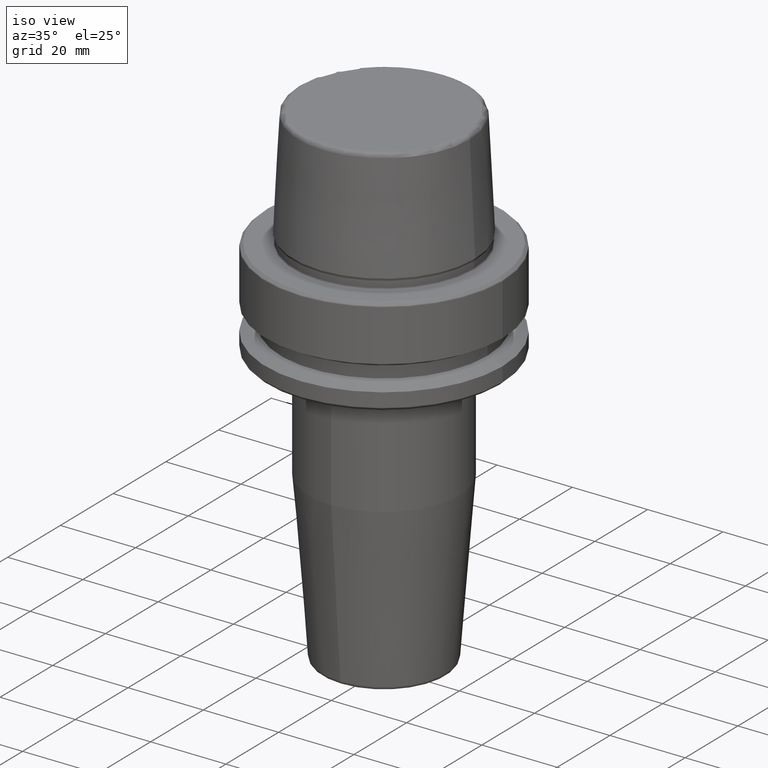
[diagram: clean part render]
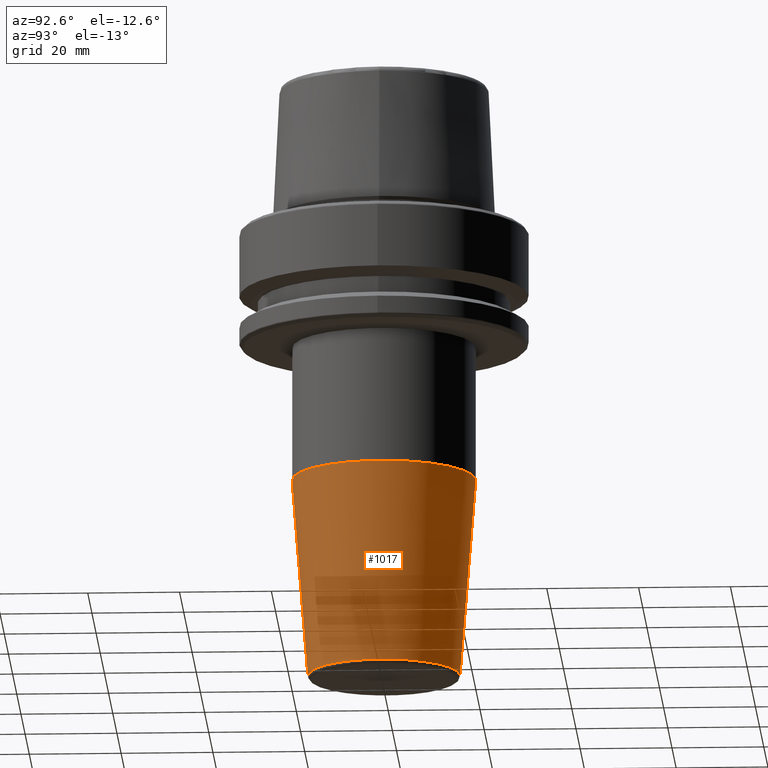
[diagram: tour spotlight — one face highlighted and labeled with its STEP entity id]
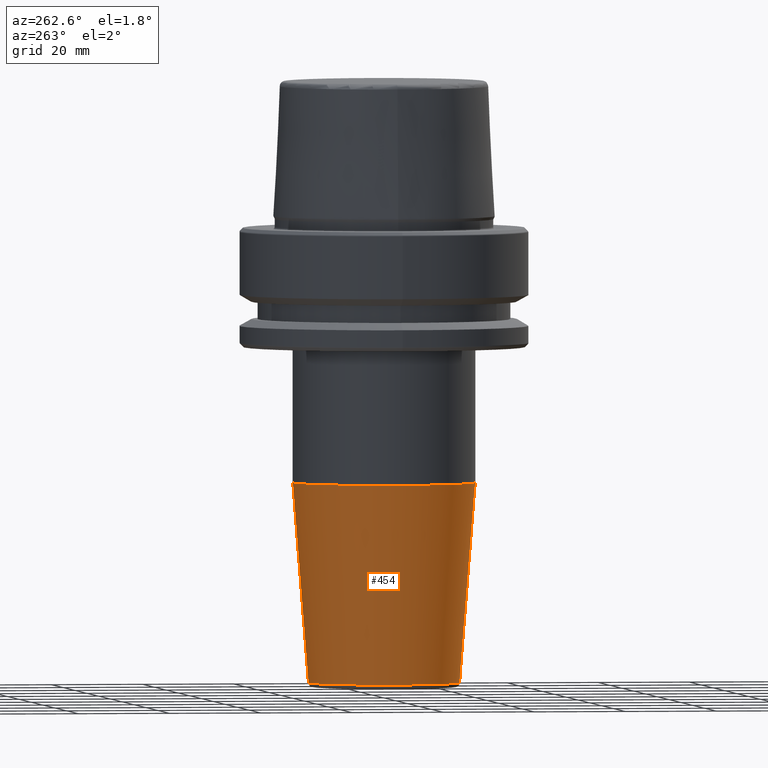
[diagram: tour spotlight — one face highlighted and labeled with its STEP entity id]
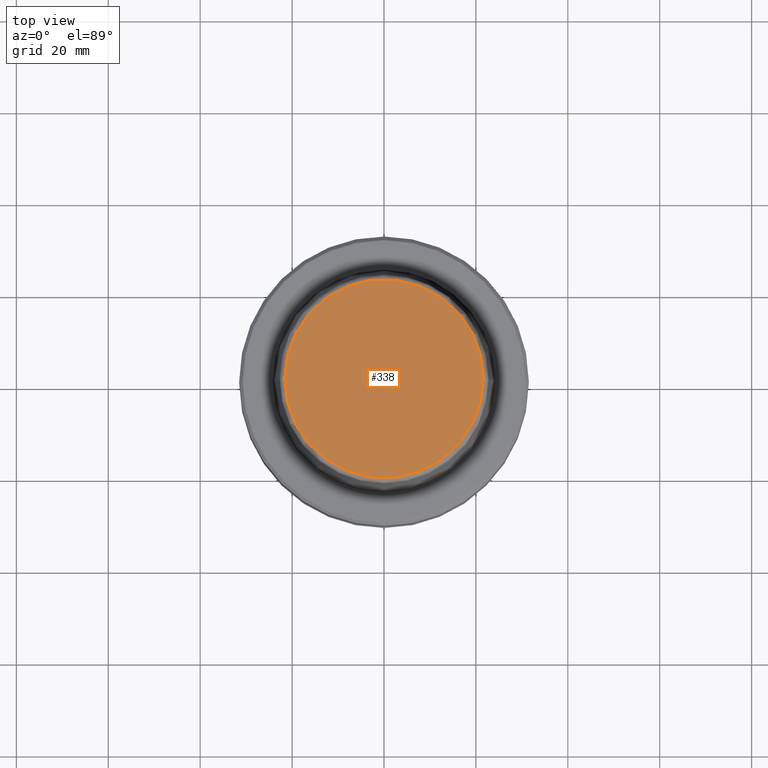
[diagram: tour spotlight — one face highlighted and labeled with its STEP entity id]
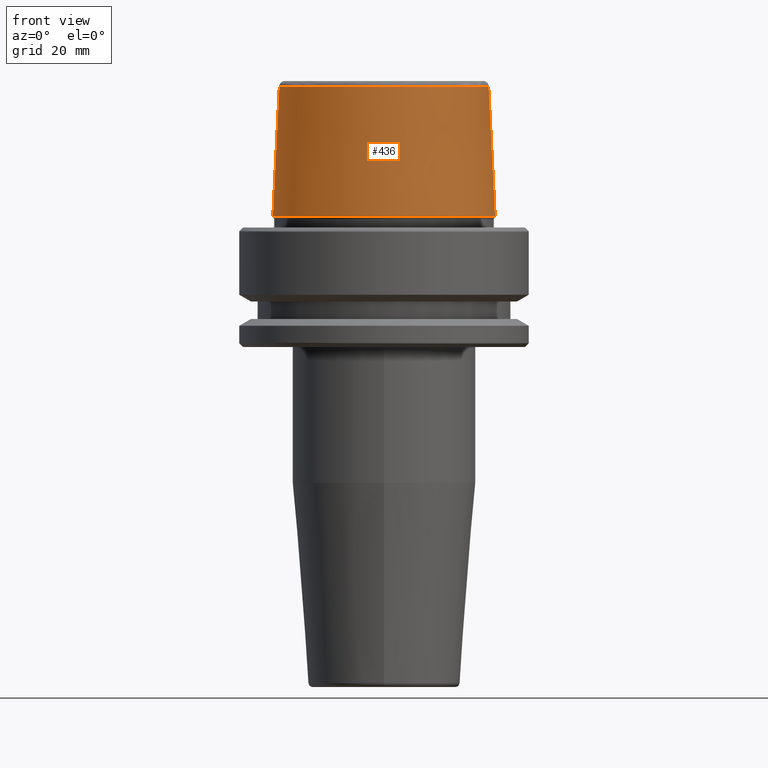
[diagram: tour spotlight — one face highlighted and labeled with its STEP entity id]
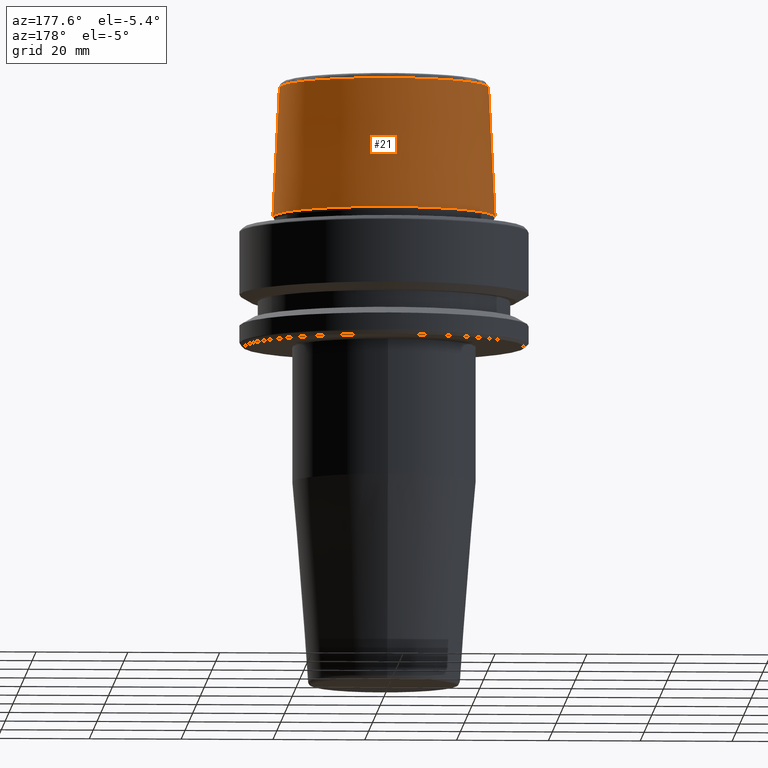
[diagram: tour spotlight — one face highlighted and labeled with its STEP entity id]
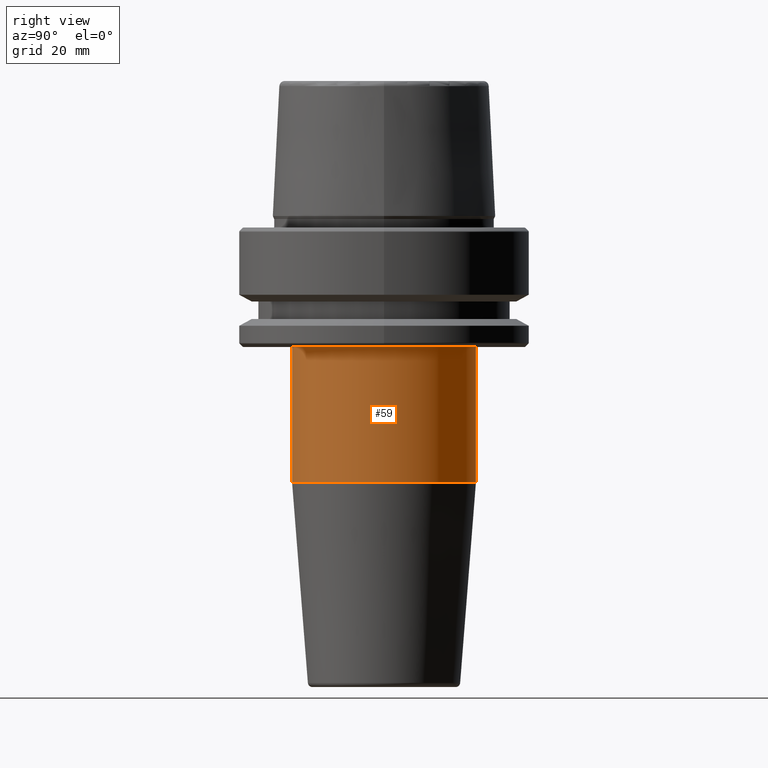
[diagram: tour spotlight — one face highlighted and labeled with its STEP entity id]
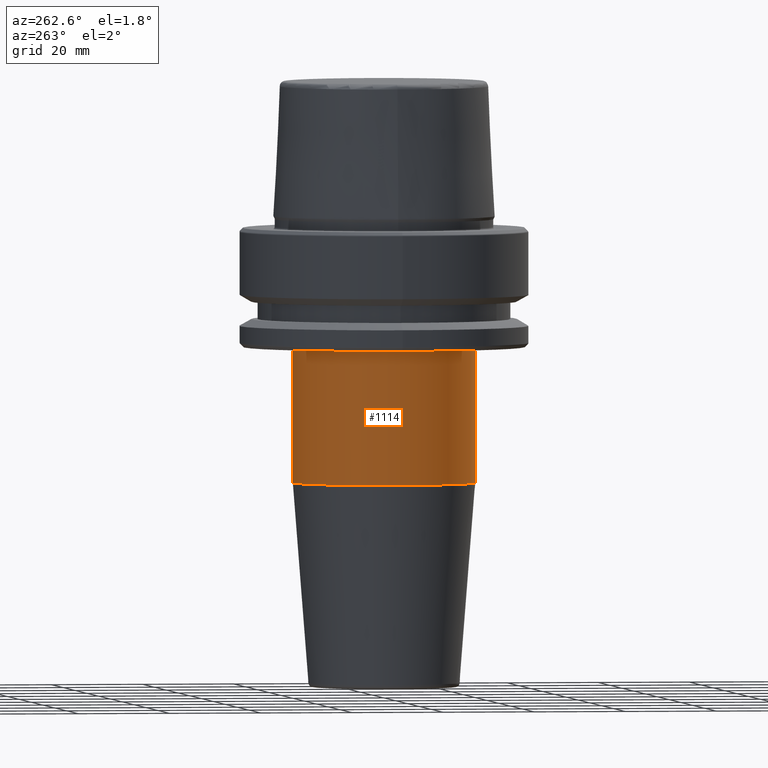
[diagram: tour spotlight — one face highlighted and labeled with its STEP entity id]
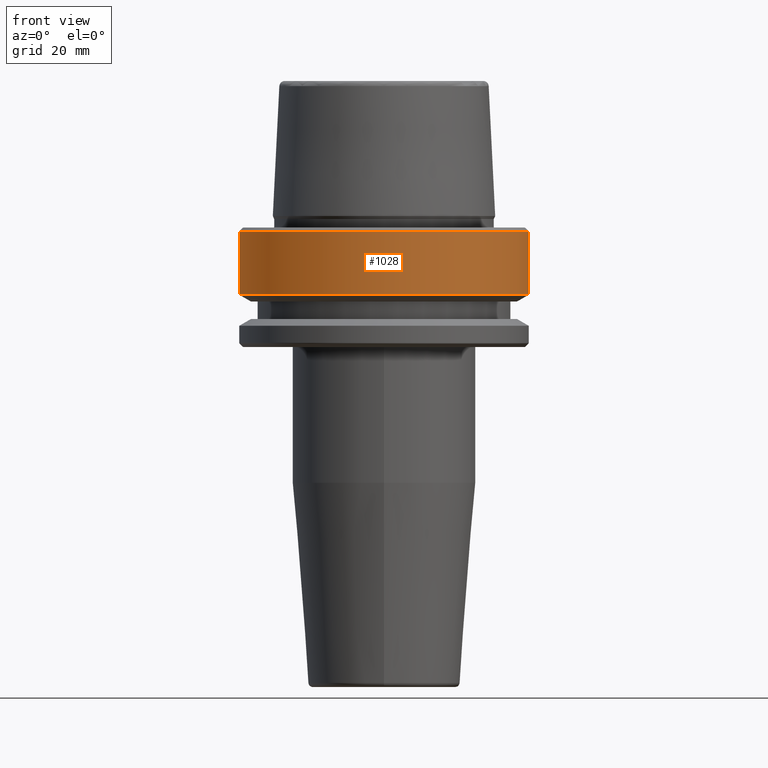
[diagram: tour spotlight — one face highlighted and labeled with its STEP entity id]
A machine part: a face-by-face anatomy tour. The part has 46 B-rep faces; the first image is the clean iso view, then the 8 largest visible faces are spotlighted one at a time (largest first), each with its STEP entity span.

Face 1 — auxiliary view, entity #1017. In plain terms, the highlighted conical surface has half-angle 4.5 deg.
Definition (entity closure, byte-faithful):
#30 = CARTESIAN_POINT ( 'NONE',  ( 0.0000000000000000000, -2.932031171251106800E-015, -55.52828342338450100 ) ) ;
#78 = EDGE_CURVE ( 'NONE', #832, #530, #959, .T. ) ;
#110 = VECTOR ( 'NONE', #869, 999.9999999999998900 ) ;
#121 = DIRECTION ( 'NONE',  ( 0.0000000000000000000, 1.000000000000000000, 0.0000000000000000000 ) ) ;
#129 = DIRECTION ( 'NONE',  ( 0.0000000000000000000, 9.929568641735291500E-017, 1.000000000000000000 ) ) ;
#148 = EDGE_LOOP ( 'NONE', ( #1251, #773, #1233, #844 ) ) ;
#154 = CARTESIAN_POINT ( 'NONE',  ( 2.029549195093064800E-015, -16.57252684207492900, -99.07845909572783700 ) ) ;
#156 = CIRCLE ( 'NONE', #1220, 16.57252684207492200 ) ;
#168 = EDGE_CURVE ( 'NONE', #530, #1243, #577, .T. ) ;
#204 = CARTESIAN_POINT ( 'NONE',  ( 2.449293598294705300E-015, 19.99999999999998600, -55.52828342338450100 ) ) ;
#208 = CARTESIAN_POINT ( 'NONE',  ( 0.0000000000000000000, -2.932031171251106800E-015, -55.52828342338450100 ) ) ;
#266 = EDGE_CURVE ( 'NONE', #832, #328, #156, .T. ) ;
#307 = CARTESIAN_POINT ( 'NONE',  ( 0.0000000000000000000, 16.57252684207491500, -99.07845909572783700 ) ) ;
#328 = VERTEX_POINT ( 'NONE', #154 ) ;
#366 = LINE ( 'NONE', #575, #110 ) ;
#392 = FACE_OUTER_BOUND ( 'NONE', #148, .T. ) ;
#530 = VERTEX_POINT ( 'NONE', #569 ) ;
#538 = DIRECTION ( 'NONE',  ( -0.0000000000000000000, -9.929568641735291500E-017, -1.000000000000000000 ) ) ;
#552 = EDGE_CURVE ( 'NONE', #328, #1243, #366, .T. ) ;
#563 = AXIS2_PLACEMENT_3D ( 'NONE', #30, #701, #121 ) ;
#569 = CARTESIAN_POINT ( 'NONE',  ( 2.449293598294705300E-015, 19.99999999999998600, -55.52828342338450100 ) ) ;
#575 = CARTESIAN_POINT ( 'NONE',  ( 0.0000000000000000000, -19.99999999999999300, -55.52828342338450100 ) ) ;
#577 = CIRCLE ( 'NONE', #563, 19.99999999999998900 ) ;
#630 = CONICAL_SURFACE ( 'NONE', #668, 19.99999999999998900, 0.07853981633973740300 ) ;
#668 = AXIS2_PLACEMENT_3D ( 'NONE', #208, #129, #707 ) ;
#701 = DIRECTION ( 'NONE',  ( -0.0000000000000000000, -9.929568641735291500E-017, -1.000000000000000000 ) ) ;
#707 = DIRECTION ( 'NONE',  ( 0.0000000000000000000, -1.000000000000000000, 0.0000000000000000000 ) ) ;
#773 = ORIENTED_EDGE ( 'NONE', *, *, #78, .T. ) ;
#797 = DIRECTION ( 'NONE',  ( 9.608468044709199800E-018, 0.07845909572783763000, 0.9969173337331286300 ) ) ;
#832 = VERTEX_POINT ( 'NONE', #307 ) ;
#844 = ORIENTED_EDGE ( 'NONE', *, *, #552, .F. ) ;
#869 = DIRECTION ( 'NONE',  ( 0.0000000000000000000, -0.07845909572783743600, 0.9969173337331286300 ) ) ;
#942 = CARTESIAN_POINT ( 'NONE',  ( 0.0000000000000000000, -19.99999999999999300, -55.52828342338450100 ) ) ;
#959 = LINE ( 'NONE', #204, #1242 ) ;
#1017 = ADVANCED_FACE ( 'NONE', ( #392 ), #630, .T. ) ;
#1132 = CARTESIAN_POINT ( 'NONE',  ( 0.0000000000000000000, -7.256375758232741500E-015, -99.07845909572783700 ) ) ;
#1220 = AXIS2_PLACEMENT_3D ( 'NONE', #1132, #538, #1225 ) ;
#1225 = DIRECTION ( 'NONE',  ( 0.0000000000000000000, 1.000000000000000000, 0.0000000000000000000 ) ) ;
#1233 = ORIENTED_EDGE ( 'NONE', *, *, #168, .T. ) ;
#1242 = VECTOR ( 'NONE', #797, 999.9999999999998900 ) ;
#1243 = VERTEX_POINT ( 'NONE', #942 ) ;
#1251 = ORIENTED_EDGE ( 'NONE', *, *, #266, .F. ) ;

Face 2 — auxiliary view, entity #454. In plain terms, the highlighted conical surface has half-angle 4.5 deg.
Definition (entity closure, byte-faithful):
#78 = EDGE_CURVE ( 'NONE', #832, #530, #959, .T. ) ;
#79 = CARTESIAN_POINT ( 'NONE',  ( 0.0000000000000000000, -2.932031171251106800E-015, -55.52828342338450100 ) ) ;
#110 = VECTOR ( 'NONE', #869, 999.9999999999998900 ) ;
#130 = EDGE_CURVE ( 'NONE', #1243, #530, #145, .T. ) ;
#145 = CIRCLE ( 'NONE', #887, 19.99999999999998900 ) ;
#154 = CARTESIAN_POINT ( 'NONE',  ( 2.029549195093064800E-015, -16.57252684207492900, -99.07845909572783700 ) ) ;
#204 = CARTESIAN_POINT ( 'NONE',  ( 2.449293598294705300E-015, 19.99999999999998600, -55.52828342338450100 ) ) ;
#307 = CARTESIAN_POINT ( 'NONE',  ( 0.0000000000000000000, 16.57252684207491500, -99.07845909572783700 ) ) ;
#319 = CARTESIAN_POINT ( 'NONE',  ( 0.0000000000000000000, -7.256375758232741500E-015, -99.07845909572783700 ) ) ;
#328 = VERTEX_POINT ( 'NONE', #154 ) ;
#366 = LINE ( 'NONE', #575, #110 ) ;
#388 = ORIENTED_EDGE ( 'NONE', *, *, #130, .T. ) ;
#413 = DIRECTION ( 'NONE',  ( 0.0000000000000000000, 1.000000000000000000, 0.0000000000000000000 ) ) ;
#421 = DIRECTION ( 'NONE',  ( -0.0000000000000000000, -9.929568641735291500E-017, -1.000000000000000000 ) ) ;
#450 = DIRECTION ( 'NONE',  ( 0.0000000000000000000, 9.929568641735291500E-017, 1.000000000000000000 ) ) ;
#454 = ADVANCED_FACE ( 'NONE', ( #1236 ), #680, .T. ) ;
#530 = VERTEX_POINT ( 'NONE', #569 ) ;
#552 = EDGE_CURVE ( 'NONE', #328, #1243, #366, .T. ) ;
#569 = CARTESIAN_POINT ( 'NONE',  ( 2.449293598294705300E-015, 19.99999999999998600, -55.52828342338450100 ) ) ;
#575 = CARTESIAN_POINT ( 'NONE',  ( 0.0000000000000000000, -19.99999999999999300, -55.52828342338450100 ) ) ;
#680 = CONICAL_SURFACE ( 'NONE', #868, 19.99999999999998900, 0.07853981633973740300 ) ;
#761 = ORIENTED_EDGE ( 'NONE', *, *, #1082, .F. ) ;
#797 = DIRECTION ( 'NONE',  ( 9.608468044709199800E-018, 0.07845909572783763000, 0.9969173337331286300 ) ) ;
#826 = ORIENTED_EDGE ( 'NONE', *, *, #78, .F. ) ;
#832 = VERTEX_POINT ( 'NONE', #307 ) ;
#868 = AXIS2_PLACEMENT_3D ( 'NONE', #79, #450, #1234 ) ;
#869 = DIRECTION ( 'NONE',  ( 0.0000000000000000000, -0.07845909572783743600, 0.9969173337331286300 ) ) ;
#887 = AXIS2_PLACEMENT_3D ( 'NONE', #1019, #421, #1119 ) ;
#942 = CARTESIAN_POINT ( 'NONE',  ( 0.0000000000000000000, -19.99999999999999300, -55.52828342338450100 ) ) ;
#959 = LINE ( 'NONE', #204, #1242 ) ;
#1008 = DIRECTION ( 'NONE',  ( -0.0000000000000000000, -9.929568641735291500E-017, -1.000000000000000000 ) ) ;
#1019 = CARTESIAN_POINT ( 'NONE',  ( 0.0000000000000000000, -2.932031171251106800E-015, -55.52828342338450100 ) ) ;
#1052 = EDGE_LOOP ( 'NONE', ( #826, #761, #1246, #388 ) ) ;
#1075 = AXIS2_PLACEMENT_3D ( 'NONE', #319, #1008, #413 ) ;
#1082 = EDGE_CURVE ( 'NONE', #328, #832, #1209, .T. ) ;
#1119 = DIRECTION ( 'NONE',  ( 0.0000000000000000000, 1.000000000000000000, 0.0000000000000000000 ) ) ;
#1209 = CIRCLE ( 'NONE', #1075, 16.57252684207492200 ) ;
#1234 = DIRECTION ( 'NONE',  ( 0.0000000000000000000, -1.000000000000000000, 0.0000000000000000000 ) ) ;
#1236 = FACE_OUTER_BOUND ( 'NONE', #1052, .T. ) ;
#1242 = VECTOR ( 'NONE', #797, 999.9999999999998900 ) ;
#1243 = VERTEX_POINT ( 'NONE', #942 ) ;
#1246 = ORIENTED_EDGE ( 'NONE', *, *, #552, .T. ) ;

Face 3 — top view, entity #338. In plain terms, the highlighted planar face has unit normal (0, 0, -1).
Definition (entity closure, byte-faithful):
#192 = CIRCLE ( 'NONE', #545, 21.58108272732117100 ) ;
#258 = CARTESIAN_POINT ( 'NONE',  ( 0.0000000000000000000, 0.0000000000000000000, 31.89999999999999900 ) ) ;
#314 = DIRECTION ( 'NONE',  ( -0.0000000000000000000, -0.0000000000000000000, 1.000000000000000000 ) ) ;
#336 = AXIS2_PLACEMENT_3D ( 'NONE', #739, #504, #1195 ) ;
#338 = ADVANCED_FACE ( 'NONE', ( #586 ), #938, .F. ) ;
#365 = DIRECTION ( 'NONE',  ( 1.000000000000000000, 0.0000000000000000000, 0.0000000000000000000 ) ) ;
#441 = VERTEX_POINT ( 'NONE', #646 ) ;
#482 = EDGE_CURVE ( 'NONE', #518, #441, #714, .T. ) ;
#504 = DIRECTION ( 'NONE',  ( 0.0000000000000000000, 0.0000000000000000000, -1.000000000000000000 ) ) ;
#518 = VERTEX_POINT ( 'NONE', #958 ) ;
#545 = AXIS2_PLACEMENT_3D ( 'NONE', #905, #314, #1002 ) ;
#586 = FACE_OUTER_BOUND ( 'NONE', #620, .T. ) ;
#620 = EDGE_LOOP ( 'NONE', ( #854, #968 ) ) ;
#646 = CARTESIAN_POINT ( 'NONE',  ( -21.58108272732117100, 2.716307157494421400E-015, 31.89999999999999900 ) ) ;
#714 = CIRCLE ( 'NONE', #992, 21.58108272732117100 ) ;
#739 = CARTESIAN_POINT ( 'NONE',  ( 0.0000000000000000000, 0.0000000000000000000, 31.89999999999999900 ) ) ;
#854 = ORIENTED_EDGE ( 'NONE', *, *, #482, .T. ) ;
#905 = CARTESIAN_POINT ( 'NONE',  ( 0.0000000000000000000, 0.0000000000000000000, 31.89999999999999900 ) ) ;
#938 = PLANE ( 'NONE',  #336 ) ;
#955 = DIRECTION ( 'NONE',  ( -0.0000000000000000000, -0.0000000000000000000, 1.000000000000000000 ) ) ;
#958 = CARTESIAN_POINT ( 'NONE',  ( 21.58108272732117100, 0.0000000000000000000, 31.89999999999999900 ) ) ;
#968 = ORIENTED_EDGE ( 'NONE', *, *, #994, .T. ) ;
#992 = AXIS2_PLACEMENT_3D ( 'NONE', #258, #955, #365 ) ;
#994 = EDGE_CURVE ( 'NONE', #441, #518, #192, .T. ) ;
#1002 = DIRECTION ( 'NONE',  ( 1.000000000000000000, 0.0000000000000000000, 0.0000000000000000000 ) ) ;
#1195 = DIRECTION ( 'NONE',  ( -1.000000000000000000, 0.0000000000000000000, -0.0000000000000000000 ) ) ;

Face 4 — front view, entity #436. In plain terms, the highlighted conical surface has half-angle 2.868 deg.
Definition (entity closure, byte-faithful):
#26 = CARTESIAN_POINT ( 'NONE',  ( 22.77957961851797100, 2.876386432489616700E-015, 30.76004333261571900 ) ) ;
#47 = EDGE_LOOP ( 'NONE', ( #516, #169, #1103, #1004 ) ) ;
#94 = DIRECTION ( 'NONE',  ( -0.0000000000000000000, -0.0000000000000000000, 1.000000000000000000 ) ) ;
#101 = CARTESIAN_POINT ( 'NONE',  ( 24.19537568275369200, 0.0000000000000000000, 2.500000000000002200 ) ) ;
#169 = ORIENTED_EDGE ( 'NONE', *, *, #735, .F. ) ;
#215 = EDGE_CURVE ( 'NONE', #353, #722, #1162, .T. ) ;
#280 = CARTESIAN_POINT ( 'NONE',  ( 0.0000000000000000000, 0.0000000000000000000, 30.76004333261571900 ) ) ;
#320 = CARTESIAN_POINT ( 'NONE',  ( -24.19537568275369200, 2.963078938405201500E-015, 2.500000000000002200 ) ) ;
#353 = VERTEX_POINT ( 'NONE', #26 ) ;
#355 = EDGE_CURVE ( 'NONE', #491, #1024, #1108, .T. ) ;
#356 = CARTESIAN_POINT ( 'NONE',  ( 0.0000000000000000000, 0.0000000000000000000, 2.500000000000002200 ) ) ;
#383 = DIRECTION ( 'NONE',  ( 1.000000000000000000, 0.0000000000000000000, 0.0000000000000000000 ) ) ;
#436 = ADVANCED_FACE ( 'NONE', ( #517 ), #1212, .T. ) ;
#491 = VERTEX_POINT ( 'NONE', #855 ) ;
#508 = DIRECTION ( 'NONE',  ( -0.05003611051310804400, 0.0000000000000000000, -0.9987474093306675200 ) ) ;
#516 = ORIENTED_EDGE ( 'NONE', *, *, #215, .F. ) ;
#517 = FACE_OUTER_BOUND ( 'NONE', #47, .T. ) ;
#540 = EDGE_CURVE ( 'NONE', #1024, #722, #1153, .T. ) ;
#554 = VECTOR ( 'NONE', #508, 1000.000000000000200 ) ;
#599 = AXIS2_PLACEMENT_3D ( 'NONE', #356, #1048, #1149 ) ;
#665 = CARTESIAN_POINT ( 'NONE',  ( 0.0000000000000000000, 0.0000000000000000000, 2.500000000000002200 ) ) ;
#694 = CARTESIAN_POINT ( 'NONE',  ( -24.19537568275369200, 0.0000000000000000000, 2.500000000000002200 ) ) ;
#705 = DIRECTION ( 'NONE',  ( 0.05003611051310804400, 6.127656258166099700E-018, -0.9987474093306675200 ) ) ;
#722 = VERTEX_POINT ( 'NONE', #101 ) ;
#735 = EDGE_CURVE ( 'NONE', #491, #353, #1215, .T. ) ;
#766 = DIRECTION ( 'NONE',  ( 1.000000000000000000, 0.0000000000000000000, 0.0000000000000000000 ) ) ;
#836 = AXIS2_PLACEMENT_3D ( 'NONE', #280, #974, #383 ) ;
#855 = CARTESIAN_POINT ( 'NONE',  ( -22.77957961851797100, 0.0000000000000000000, 30.76004333261571900 ) ) ;
#974 = DIRECTION ( 'NONE',  ( -0.0000000000000000000, -0.0000000000000000000, 1.000000000000000000 ) ) ;
#1004 = ORIENTED_EDGE ( 'NONE', *, *, #540, .T. ) ;
#1024 = VERTEX_POINT ( 'NONE', #320 ) ;
#1048 = DIRECTION ( 'NONE',  ( 0.0000000000000000000, 0.0000000000000000000, -1.000000000000000000 ) ) ;
#1072 = VECTOR ( 'NONE', #705, 1000.000000000000200 ) ;
#1103 = ORIENTED_EDGE ( 'NONE', *, *, #355, .T. ) ;
#1105 = CARTESIAN_POINT ( 'NONE',  ( 24.19537568275369200, 2.963078938405201500E-015, 2.500000000000002200 ) ) ;
#1108 = LINE ( 'NONE', #694, #554 ) ;
#1149 = DIRECTION ( 'NONE',  ( -1.000000000000000000, 0.0000000000000000000, 0.0000000000000000000 ) ) ;
#1153 = CIRCLE ( 'NONE', #1255, 24.19537568275369200 ) ;
#1162 = LINE ( 'NONE', #1105, #1072 ) ;
#1212 = CONICAL_SURFACE ( 'NONE', #599, 24.19537568275369200, 0.05005701257455997400 ) ;
#1215 = CIRCLE ( 'NONE', #836, 22.77957961851797100 ) ;
#1255 = AXIS2_PLACEMENT_3D ( 'NONE', #665, #94, #766 ) ;

Face 5 — auxiliary view, entity #21. In plain terms, the highlighted conical surface has half-angle 2.868 deg.
Definition (entity closure, byte-faithful):
#21 = ADVANCED_FACE ( 'NONE', ( #494 ), #193, .T. ) ;
#26 = CARTESIAN_POINT ( 'NONE',  ( 22.77957961851797100, 2.876386432489616700E-015, 30.76004333261571900 ) ) ;
#99 = DIRECTION ( 'NONE',  ( 1.000000000000000000, 0.0000000000000000000, 0.0000000000000000000 ) ) ;
#101 = CARTESIAN_POINT ( 'NONE',  ( 24.19537568275369200, 0.0000000000000000000, 2.500000000000002200 ) ) ;
#122 = CARTESIAN_POINT ( 'NONE',  ( 0.0000000000000000000, 0.0000000000000000000, 30.76004333261571900 ) ) ;
#188 = CIRCLE ( 'NONE', #1244, 24.19537568275369200 ) ;
#193 = CONICAL_SURFACE ( 'NONE', #364, 24.19537568275369200, 0.05005701257455997400 ) ;
#206 = DIRECTION ( 'NONE',  ( 1.000000000000000000, 0.0000000000000000000, 0.0000000000000000000 ) ) ;
#215 = EDGE_CURVE ( 'NONE', #353, #722, #1162, .T. ) ;
#245 = ORIENTED_EDGE ( 'NONE', *, *, #557, .T. ) ;
#320 = CARTESIAN_POINT ( 'NONE',  ( -24.19537568275369200, 2.963078938405201500E-015, 2.500000000000002200 ) ) ;
#334 = EDGE_LOOP ( 'NONE', ( #875, #495, #245, #774 ) ) ;
#353 = VERTEX_POINT ( 'NONE', #26 ) ;
#355 = EDGE_CURVE ( 'NONE', #491, #1024, #1108, .T. ) ;
#358 = EDGE_CURVE ( 'NONE', #353, #491, #845, .T. ) ;
#363 = CARTESIAN_POINT ( 'NONE',  ( 0.0000000000000000000, 0.0000000000000000000, 2.500000000000002200 ) ) ;
#364 = AXIS2_PLACEMENT_3D ( 'NONE', #363, #649, #1245 ) ;
#395 = AXIS2_PLACEMENT_3D ( 'NONE', #122, #802, #206 ) ;
#491 = VERTEX_POINT ( 'NONE', #855 ) ;
#494 = FACE_OUTER_BOUND ( 'NONE', #334, .T. ) ;
#495 = ORIENTED_EDGE ( 'NONE', *, *, #215, .T. ) ;
#508 = DIRECTION ( 'NONE',  ( -0.05003611051310804400, 0.0000000000000000000, -0.9987474093306675200 ) ) ;
#554 = VECTOR ( 'NONE', #508, 1000.000000000000200 ) ;
#557 = EDGE_CURVE ( 'NONE', #722, #1024, #188, .T. ) ;
#649 = DIRECTION ( 'NONE',  ( 0.0000000000000000000, 0.0000000000000000000, -1.000000000000000000 ) ) ;
#669 = DIRECTION ( 'NONE',  ( -0.0000000000000000000, -0.0000000000000000000, 1.000000000000000000 ) ) ;
#694 = CARTESIAN_POINT ( 'NONE',  ( -24.19537568275369200, 0.0000000000000000000, 2.500000000000002200 ) ) ;
#705 = DIRECTION ( 'NONE',  ( 0.05003611051310804400, 6.127656258166099700E-018, -0.9987474093306675200 ) ) ;
#722 = VERTEX_POINT ( 'NONE', #101 ) ;
#774 = ORIENTED_EDGE ( 'NONE', *, *, #355, .F. ) ;
#802 = DIRECTION ( 'NONE',  ( -0.0000000000000000000, -0.0000000000000000000, 1.000000000000000000 ) ) ;
#845 = CIRCLE ( 'NONE', #395, 22.77957961851797100 ) ;
#855 = CARTESIAN_POINT ( 'NONE',  ( -22.77957961851797100, 0.0000000000000000000, 30.76004333261571900 ) ) ;
#875 = ORIENTED_EDGE ( 'NONE', *, *, #358, .F. ) ;
#1024 = VERTEX_POINT ( 'NONE', #320 ) ;
#1072 = VECTOR ( 'NONE', #705, 1000.000000000000200 ) ;
#1105 = CARTESIAN_POINT ( 'NONE',  ( 24.19537568275369200, 2.963078938405201500E-015, 2.500000000000002200 ) ) ;
#1108 = LINE ( 'NONE', #694, #554 ) ;
#1162 = LINE ( 'NONE', #1105, #1072 ) ;
#1244 = AXIS2_PLACEMENT_3D ( 'NONE', #1257, #669, #99 ) ;
#1245 = DIRECTION ( 'NONE',  ( -1.000000000000000000, 0.0000000000000000000, 0.0000000000000000000 ) ) ;
#1257 = CARTESIAN_POINT ( 'NONE',  ( 0.0000000000000000000, 0.0000000000000000000, 2.500000000000002200 ) ) ;

Face 6 — right view, entity #59. In plain terms, the highlighted cylindrical surface (partial cylindrical patch) has radius 20 mm, axis along (-0, -0, -1).
Definition (entity closure, byte-faithful):
#7 = ORIENTED_EDGE ( 'NONE', *, *, #742, .T. ) ;
#27 = DIRECTION ( 'NONE',  ( 0.0000000000000000000, 1.000000000000000000, 0.0000000000000000000 ) ) ;
#30 = CARTESIAN_POINT ( 'NONE',  ( 0.0000000000000000000, -2.932031171251106800E-015, -55.52828342338450100 ) ) ;
#41 = CARTESIAN_POINT ( 'NONE',  ( 0.0000000000000000000, 19.99999999999998900, -26.00000000000001100 ) ) ;
#54 = CARTESIAN_POINT ( 'NONE',  ( 0.0000000000000000000, -7.347880794884115200E-015, -100.0000000000000000 ) ) ;
#59 = ADVANCED_FACE ( 'NONE', ( #752 ), #431, .T. ) ;
#97 = DIRECTION ( 'NONE',  ( -0.0000000000000000000, -9.929568641735291500E-017, -1.000000000000000000 ) ) ;
#121 = DIRECTION ( 'NONE',  ( 0.0000000000000000000, 1.000000000000000000, 0.0000000000000000000 ) ) ;
#125 = VECTOR ( 'NONE', #633, 1000.000000000000000 ) ;
#168 = EDGE_CURVE ( 'NONE', #530, #1243, #577, .T. ) ;
#220 = LINE ( 'NONE', #474, #1238 ) ;
#229 = ORIENTED_EDGE ( 'NONE', *, *, #674, .F. ) ;
#279 = EDGE_CURVE ( 'NONE', #1079, #1243, #381, .T. ) ;
#297 = DIRECTION ( 'NONE',  ( 0.0000000000000000000, 0.0000000000000000000, -1.000000000000000000 ) ) ;
#337 = CARTESIAN_POINT ( 'NONE',  ( 2.449293598294705300E-015, -19.99999999999999600, -100.0000000000000000 ) ) ;
#381 = LINE ( 'NONE', #337, #125 ) ;
#431 = CYLINDRICAL_SURFACE ( 'NONE', #758, 19.99999999999998900 ) ;
#474 = CARTESIAN_POINT ( 'NONE',  ( 0.0000000000000000000, 19.99999999999998200, -100.0000000000000000 ) ) ;
#530 = VERTEX_POINT ( 'NONE', #569 ) ;
#563 = AXIS2_PLACEMENT_3D ( 'NONE', #30, #701, #121 ) ;
#569 = CARTESIAN_POINT ( 'NONE',  ( 2.449293598294705300E-015, 19.99999999999998600, -55.52828342338450100 ) ) ;
#577 = CIRCLE ( 'NONE', #563, 19.99999999999998900 ) ;
#633 = DIRECTION ( 'NONE',  ( -0.0000000000000000000, -9.929568641735291500E-017, -1.000000000000000000 ) ) ;
#674 = EDGE_CURVE ( 'NONE', #1013, #530, #220, .T. ) ;
#701 = DIRECTION ( 'NONE',  ( -0.0000000000000000000, -9.929568641735291500E-017, -1.000000000000000000 ) ) ;
#713 = EDGE_LOOP ( 'NONE', ( #7, #934, #913, #229 ) ) ;
#742 = EDGE_CURVE ( 'NONE', #1013, #1079, #1185, .T. ) ;
#752 = FACE_OUTER_BOUND ( 'NONE', #713, .T. ) ;
#758 = AXIS2_PLACEMENT_3D ( 'NONE', #54, #1196, #27 ) ;
#892 = CARTESIAN_POINT ( 'NONE',  ( 0.0000000000000000000, 0.0000000000000000000, -26.00000000000001100 ) ) ;
#913 = ORIENTED_EDGE ( 'NONE', *, *, #168, .F. ) ;
#934 = ORIENTED_EDGE ( 'NONE', *, *, #279, .T. ) ;
#942 = CARTESIAN_POINT ( 'NONE',  ( 0.0000000000000000000, -19.99999999999999300, -55.52828342338450100 ) ) ;
#991 = DIRECTION ( 'NONE',  ( 1.000000000000000000, 0.0000000000000000000, 0.0000000000000000000 ) ) ;
#1013 = VERTEX_POINT ( 'NONE', #41 ) ;
#1079 = VERTEX_POINT ( 'NONE', #1118 ) ;
#1096 = AXIS2_PLACEMENT_3D ( 'NONE', #892, #297, #991 ) ;
#1118 = CARTESIAN_POINT ( 'NONE',  ( 2.449293598294705300E-015, -19.99999999999998900, -26.00000000000001100 ) ) ;
#1185 = CIRCLE ( 'NONE', #1096, 19.99999999999998900 ) ;
#1196 = DIRECTION ( 'NONE',  ( -0.0000000000000000000, -9.929568641735291500E-017, -1.000000000000000000 ) ) ;
#1238 = VECTOR ( 'NONE', #97, 1000.000000000000000 ) ;
#1243 = VERTEX_POINT ( 'NONE', #942 ) ;

Face 7 — auxiliary view, entity #1114. In plain terms, the highlighted cylindrical surface (partial cylindrical patch) has radius 20 mm, axis along (-0, -0, -1).
Definition (entity closure, byte-faithful):
#41 = CARTESIAN_POINT ( 'NONE',  ( 0.0000000000000000000, 19.99999999999998900, -26.00000000000001100 ) ) ;
#97 = DIRECTION ( 'NONE',  ( -0.0000000000000000000, -9.929568641735291500E-017, -1.000000000000000000 ) ) ;
#124 = AXIS2_PLACEMENT_3D ( 'NONE', #519, #817, #132 ) ;
#125 = VECTOR ( 'NONE', #633, 1000.000000000000000 ) ;
#130 = EDGE_CURVE ( 'NONE', #1243, #530, #145, .T. ) ;
#132 = DIRECTION ( 'NONE',  ( 0.0000000000000000000, 1.000000000000000000, 0.0000000000000000000 ) ) ;
#145 = CIRCLE ( 'NONE', #887, 19.99999999999998900 ) ;
#220 = LINE ( 'NONE', #474, #1238 ) ;
#251 = EDGE_CURVE ( 'NONE', #1079, #1013, #1199, .T. ) ;
#279 = EDGE_CURVE ( 'NONE', #1079, #1243, #381, .T. ) ;
#306 = ORIENTED_EDGE ( 'NONE', *, *, #674, .T. ) ;
#337 = CARTESIAN_POINT ( 'NONE',  ( 2.449293598294705300E-015, -19.99999999999999600, -100.0000000000000000 ) ) ;
#375 = CYLINDRICAL_SURFACE ( 'NONE', #124, 19.99999999999998900 ) ;
#381 = LINE ( 'NONE', #337, #125 ) ;
#421 = DIRECTION ( 'NONE',  ( -0.0000000000000000000, -9.929568641735291500E-017, -1.000000000000000000 ) ) ;
#430 = DIRECTION ( 'NONE',  ( 1.000000000000000000, 0.0000000000000000000, 0.0000000000000000000 ) ) ;
#474 = CARTESIAN_POINT ( 'NONE',  ( 0.0000000000000000000, 19.99999999999998200, -100.0000000000000000 ) ) ;
#519 = CARTESIAN_POINT ( 'NONE',  ( 0.0000000000000000000, -7.347880794884115200E-015, -100.0000000000000000 ) ) ;
#530 = VERTEX_POINT ( 'NONE', #569 ) ;
#569 = CARTESIAN_POINT ( 'NONE',  ( 2.449293598294705300E-015, 19.99999999999998600, -55.52828342338450100 ) ) ;
#633 = DIRECTION ( 'NONE',  ( -0.0000000000000000000, -9.929568641735291500E-017, -1.000000000000000000 ) ) ;
#653 = FACE_OUTER_BOUND ( 'NONE', #979, .T. ) ;
#674 = EDGE_CURVE ( 'NONE', #1013, #530, #220, .T. ) ;
#817 = DIRECTION ( 'NONE',  ( -0.0000000000000000000, -9.929568641735291500E-017, -1.000000000000000000 ) ) ;
#884 = AXIS2_PLACEMENT_3D ( 'NONE', #1113, #1027, #430 ) ;
#887 = AXIS2_PLACEMENT_3D ( 'NONE', #1019, #421, #1119 ) ;
#899 = ORIENTED_EDGE ( 'NONE', *, *, #279, .F. ) ;
#942 = CARTESIAN_POINT ( 'NONE',  ( 0.0000000000000000000, -19.99999999999999300, -55.52828342338450100 ) ) ;
#979 = EDGE_LOOP ( 'NONE', ( #899, #1213, #306, #1062 ) ) ;
#1013 = VERTEX_POINT ( 'NONE', #41 ) ;
#1019 = CARTESIAN_POINT ( 'NONE',  ( 0.0000000000000000000, -2.932031171251106800E-015, -55.52828342338450100 ) ) ;
#1027 = DIRECTION ( 'NONE',  ( 0.0000000000000000000, 0.0000000000000000000, -1.000000000000000000 ) ) ;
#1062 = ORIENTED_EDGE ( 'NONE', *, *, #130, .F. ) ;
#1079 = VERTEX_POINT ( 'NONE', #1118 ) ;
#1113 = CARTESIAN_POINT ( 'NONE',  ( 0.0000000000000000000, 0.0000000000000000000, -26.00000000000001100 ) ) ;
#1114 = ADVANCED_FACE ( 'NONE', ( #653 ), #375, .T. ) ;
#1118 = CARTESIAN_POINT ( 'NONE',  ( 2.449293598294705300E-015, -19.99999999999998900, -26.00000000000001100 ) ) ;
#1119 = DIRECTION ( 'NONE',  ( 0.0000000000000000000, 1.000000000000000000, 0.0000000000000000000 ) ) ;
#1199 = CIRCLE ( 'NONE', #884, 19.99999999999998900 ) ;
#1213 = ORIENTED_EDGE ( 'NONE', *, *, #251, .T. ) ;
#1238 = VECTOR ( 'NONE', #97, 1000.000000000000000 ) ;
#1243 = VERTEX_POINT ( 'NONE', #942 ) ;

Face 8 — front view, entity #1028. In plain terms, the highlighted cylindrical surface (partial cylindrical patch) has radius 31.5 mm, axis along (-0, -0, 1).
Definition (entity closure, byte-faithful):
#15 = VERTEX_POINT ( 'NONE', #458 ) ;
#60 = LINE ( 'NONE', #151, #267 ) ;
#71 = AXIS2_PLACEMENT_3D ( 'NONE', #821, #224, #918 ) ;
#108 = EDGE_CURVE ( 'NONE', #155, #15, #926, .T. ) ;
#142 = FACE_OUTER_BOUND ( 'NONE', #165, .T. ) ;
#151 = CARTESIAN_POINT ( 'NONE',  ( 31.50000000000000000, 0.0000000000000000000, 78.96908074195309300 ) ) ;
#155 = VERTEX_POINT ( 'NONE', #189 ) ;
#165 = EDGE_LOOP ( 'NONE', ( #914, #1031, #1032, #726 ) ) ;
#170 = VECTOR ( 'NONE', #973, 1000.000000000000000 ) ;
#189 = CARTESIAN_POINT ( 'NONE',  ( -31.50000000000000000, 3.857637417314162700E-015, -0.9656854249492363700 ) ) ;
#209 = DIRECTION ( 'NONE',  ( -0.0000000000000000000, -0.0000000000000000000, 1.000000000000000000 ) ) ;
#214 = CARTESIAN_POINT ( 'NONE',  ( 0.0000000000000000000, 0.0000000000000000000, 78.96908074195309300 ) ) ;
#224 = DIRECTION ( 'NONE',  ( -0.0000000000000000000, -0.0000000000000000000, 1.000000000000000000 ) ) ;
#254 = CYLINDRICAL_SURFACE ( 'NONE', #872, 31.50000000000000000 ) ;
#267 = VECTOR ( 'NONE', #635, 1000.000000000000000 ) ;
#380 = VERTEX_POINT ( 'NONE', #603 ) ;
#458 = CARTESIAN_POINT ( 'NONE',  ( 31.50000000000000000, 0.0000000000000000000, -0.9656854249492363700 ) ) ;
#585 = VERTEX_POINT ( 'NONE', #1071 ) ;
#603 = CARTESIAN_POINT ( 'NONE',  ( 31.50000000000000000, 0.0000000000000000000, -14.62250092524070100 ) ) ;
#635 = DIRECTION ( 'NONE',  ( -0.0000000000000000000, -0.0000000000000000000, 1.000000000000000000 ) ) ;
#636 = CIRCLE ( 'NONE', #71, 31.50000000000000000 ) ;
#644 = EDGE_CURVE ( 'NONE', #380, #15, #60, .T. ) ;
#672 = CARTESIAN_POINT ( 'NONE',  ( -31.50000000000000000, 3.857637417314162700E-015, 78.96908074195309300 ) ) ;
#682 = LINE ( 'NONE', #672, #170 ) ;
#726 = ORIENTED_EDGE ( 'NONE', *, *, #108, .F. ) ;
#729 = EDGE_CURVE ( 'NONE', #585, #155, #682, .T. ) ;
#805 = CARTESIAN_POINT ( 'NONE',  ( 0.0000000000000000000, 0.0000000000000000000, -0.9656854249492363700 ) ) ;
#814 = DIRECTION ( 'NONE',  ( 1.000000000000000000, 0.0000000000000000000, 0.0000000000000000000 ) ) ;
#821 = CARTESIAN_POINT ( 'NONE',  ( 0.0000000000000000000, 0.0000000000000000000, -14.62250092524070100 ) ) ;
#829 = AXIS2_PLACEMENT_3D ( 'NONE', #805, #209, #906 ) ;
#872 = AXIS2_PLACEMENT_3D ( 'NONE', #214, #1012, #814 ) ;
#906 = DIRECTION ( 'NONE',  ( 1.000000000000000000, 0.0000000000000000000, 0.0000000000000000000 ) ) ;
#914 = ORIENTED_EDGE ( 'NONE', *, *, #729, .F. ) ;
#918 = DIRECTION ( 'NONE',  ( 1.000000000000000000, 0.0000000000000000000, 0.0000000000000000000 ) ) ;
#926 = CIRCLE ( 'NONE', #829, 31.50000000000000000 ) ;
#973 = DIRECTION ( 'NONE',  ( -0.0000000000000000000, -0.0000000000000000000, 1.000000000000000000 ) ) ;
#1012 = DIRECTION ( 'NONE',  ( -0.0000000000000000000, -0.0000000000000000000, 1.000000000000000000 ) ) ;
#1028 = ADVANCED_FACE ( 'NONE', ( #142 ), #254, .T. ) ;
#1031 = ORIENTED_EDGE ( 'NONE', *, *, #1117, .T. ) ;
#1032 = ORIENTED_EDGE ( 'NONE', *, *, #644, .T. ) ;
#1071 = CARTESIAN_POINT ( 'NONE',  ( -31.50000000000000000, 3.857637417314162700E-015, -14.62250092524070100 ) ) ;
#1117 = EDGE_CURVE ( 'NONE', #585, #380, #636, .T. ) ;